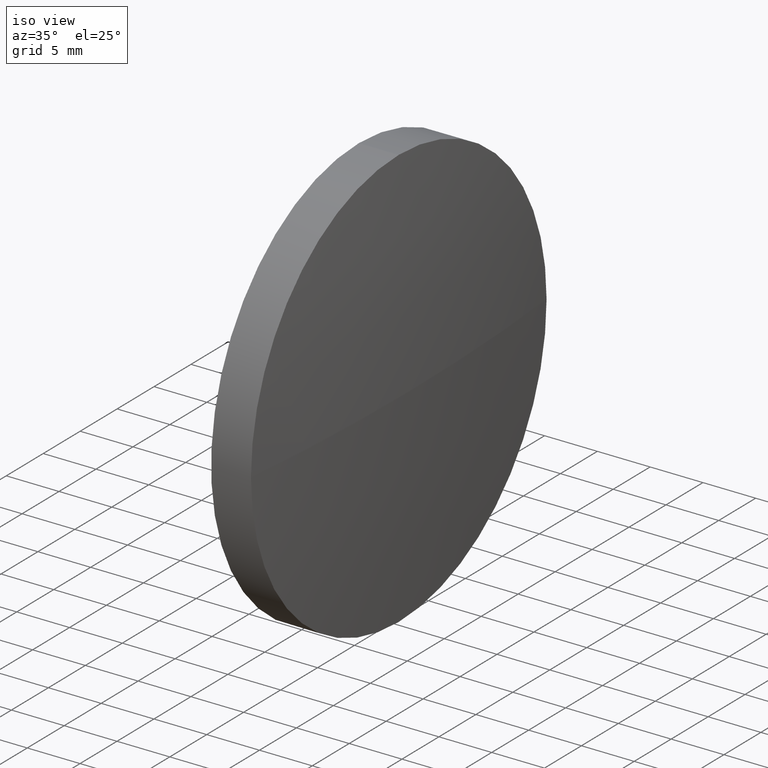
[diagram: clean part render]
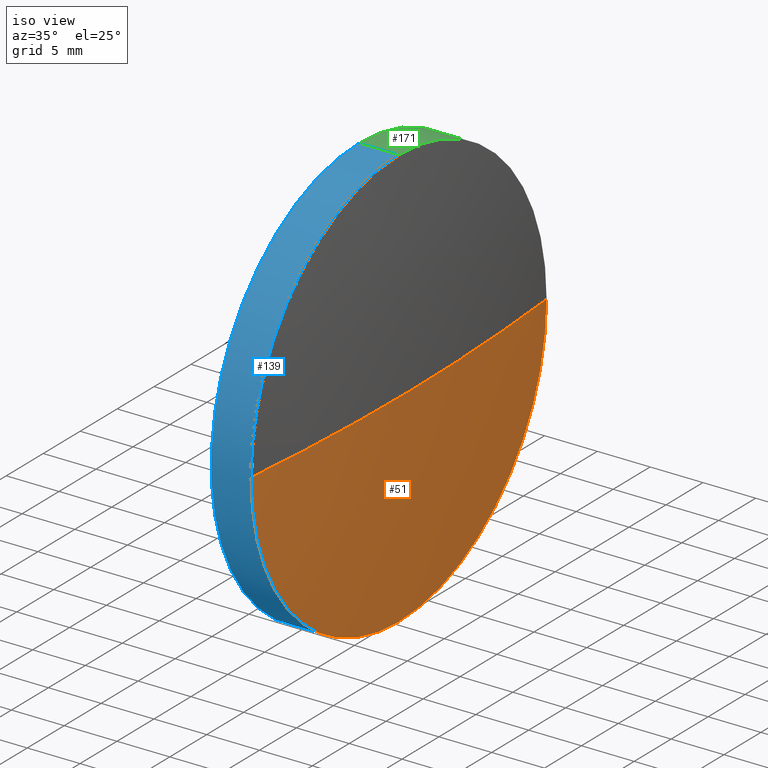
[diagram: same view with three faces highlighted in distinct colors, each labeled with its STEP entity id]
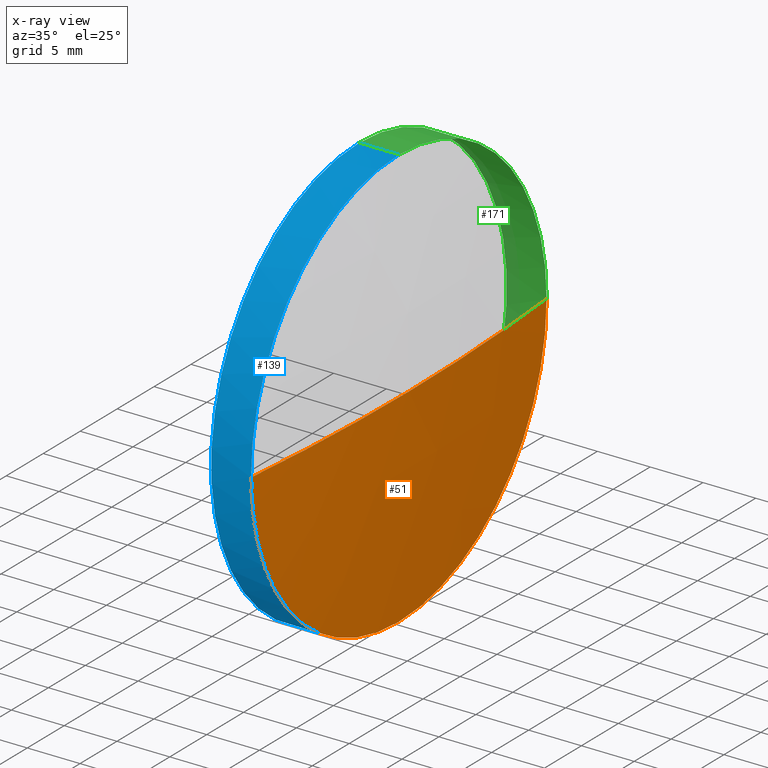
[diagram: x-ray of the same camera — body ghosted, the three highlighted faces saturated]
A machine part, iso view with three faces highlighted in distinct colors.
The next image is the same camera in x-ray (body ghosted, the three faces saturated) — at least one of them is partly hidden behind the body in this view.
Their STEP definitions:

[orange] entity #51 — the highlighted spherical surface has radius 205.616 mm.
#16 = ORIENTED_EDGE ( 'NONE', *, *, #31, .F. ) ;
#22 = CARTESIAN_POINT ( 'NONE',  ( 306.7557081062893800, 118.9984717383098300, 0.0000000000000000000 ) ) ;
#25 = CARTESIAN_POINT ( 'NONE',  ( 511.3964132344987100, 118.9984717383097600, -20.00000000000000400 ) ) ;
#28 = CIRCLE ( 'NONE', #132, 205.6157051282092700 ) ;
#31 = EDGE_CURVE ( 'NONE', #131, #55, #150, .T. ) ;
#36 = DIRECTION ( 'NONE',  ( 0.0000000000000000000, -1.000000000000000000, -1.224646799147353200E-016 ) ) ;
#39 = CARTESIAN_POINT ( 'NONE',  ( 511.3964132344987100, 118.9984717383097600, 0.0000000000000000000 ) ) ;
#44 = VERTEX_POINT ( 'NONE', #50 ) ;
#50 = CARTESIAN_POINT ( 'NONE',  ( 511.3964132344987100, 98.99847173830990200, 0.0000000000000000000 ) ) ;
#51 = ADVANCED_FACE ( 'NONE', ( #185 ), #183, .T. ) ;
#52 = DIRECTION ( 'NONE',  ( 0.0000000000000000000, -1.000000000000000000, 0.0000000000000000000 ) ) ;
#55 = VERTEX_POINT ( 'NONE', #166 ) ;
#56 = DIRECTION ( 'NONE',  ( -1.000000000000000000, 0.0000000000000000000, 0.0000000000000000000 ) ) ;
#60 = EDGE_CURVE ( 'NONE', #156, #44, #74, .T. ) ;
#74 = CIRCLE ( 'NONE', #135, 20.00000000000000400 ) ;
#79 = DIRECTION ( 'NONE',  ( 0.0000000000000000000, 0.0000000000000000000, -1.000000000000000000 ) ) ;
#83 = CARTESIAN_POINT ( 'NONE',  ( 511.3964132344987100, 118.9984717383097600, 0.0000000000000000000 ) ) ;
#85 = ORIENTED_EDGE ( 'NONE', *, *, #60, .F. ) ;
#88 = EDGE_LOOP ( 'NONE', ( #16, #164, #85, #115 ) ) ;
#91 = CARTESIAN_POINT ( 'NONE',  ( 306.7557081062893800, 118.9984717383098300, 0.0000000000000000000 ) ) ;
#107 = AXIS2_PLACEMENT_3D ( 'NONE', #22, #138, #52 ) ;
#108 = DIRECTION ( 'NONE',  ( 0.0000000000000000000, 0.0000000000000000000, 1.000000000000000000 ) ) ;
#110 = DIRECTION ( 'NONE',  ( -1.000000000000000000, -0.0000000000000000000, -0.0000000000000000000 ) ) ;
#115 = ORIENTED_EDGE ( 'NONE', *, *, #154, .F. ) ;
#121 = AXIS2_PLACEMENT_3D ( 'NONE', #91, #122, #36 ) ;
#122 = DIRECTION ( 'NONE',  ( 0.0000000000000000000, -1.224646799147353200E-016, 1.000000000000000000 ) ) ;
#123 = CARTESIAN_POINT ( 'NONE',  ( 306.7557081062893800, 118.9984717383098300, 0.0000000000000000000 ) ) ;
#124 = DIRECTION ( 'NONE',  ( 0.0000000000000000000, 0.0000000000000000000, 1.000000000000000000 ) ) ;
#126 = CARTESIAN_POINT ( 'NONE',  ( 512.3714132344986200, 118.9984717383098200, 0.0000000000000000000 ) ) ;
#130 = EDGE_CURVE ( 'NONE', #131, #44, #28, .T. ) ;
#131 = VERTEX_POINT ( 'NONE', #126 ) ;
#132 = AXIS2_PLACEMENT_3D ( 'NONE', #123, #79, #56 ) ;
#135 = AXIS2_PLACEMENT_3D ( 'NONE', #83, #110, #108 ) ;
#138 = DIRECTION ( 'NONE',  ( 0.0000000000000000000, 0.0000000000000000000, 1.000000000000000000 ) ) ;
#150 = CIRCLE ( 'NONE', #121, 205.6157051282092700 ) ;
#154 = EDGE_CURVE ( 'NONE', #55, #156, #180, .T. ) ;
#156 = VERTEX_POINT ( 'NONE', #25 ) ;
#164 = ORIENTED_EDGE ( 'NONE', *, *, #130, .T. ) ;
#166 = CARTESIAN_POINT ( 'NONE',  ( 511.3964132344987100, 138.9984717383096900, 2.449293598294687200E-015 ) ) ;
#170 = AXIS2_PLACEMENT_3D ( 'NONE', #39, #182, #124 ) ;
#180 = CIRCLE ( 'NONE', #170, 20.00000000000000400 ) ;
#182 = DIRECTION ( 'NONE',  ( -1.000000000000000000, -0.0000000000000000000, -0.0000000000000000000 ) ) ;
#183 = SPHERICAL_SURFACE ( 'NONE', #107, 205.6157051282092700 ) ;
#185 = FACE_OUTER_BOUND ( 'NONE', #88, .T. ) ;

[blue] entity #139 — the highlighted cylindrical surface (partial cylindrical patch) has radius 20 mm, axis along (-1, -0, -0).
#1 = VERTEX_POINT ( 'NONE', #63 ) ;
#3 = DIRECTION ( 'NONE',  ( 0.0000000000000000000, 0.0000000000000000000, 1.000000000000000000 ) ) ;
#8 = CARTESIAN_POINT ( 'NONE',  ( 511.3964132344987100, 118.9984717383097600, 0.0000000000000000000 ) ) ;
#9 = EDGE_LOOP ( 'NONE', ( #49, #174, #111, #24, #114 ) ) ;
#10 = DIRECTION ( 'NONE',  ( 0.0000000000000000000, 0.0000000000000000000, 1.000000000000000000 ) ) ;
#11 = DIRECTION ( 'NONE',  ( -1.000000000000000000, -0.0000000000000000000, -0.0000000000000000000 ) ) ;
#17 = EDGE_CURVE ( 'NONE', #32, #78, #76, .T. ) ;
#18 = CARTESIAN_POINT ( 'NONE',  ( 507.6214132344987300, 118.9984717383097600, 0.0000000000000000000 ) ) ;
#24 = ORIENTED_EDGE ( 'NONE', *, *, #134, .T. ) ;
#25 = CARTESIAN_POINT ( 'NONE',  ( 511.3964132344987100, 118.9984717383097600, -20.00000000000000400 ) ) ;
#32 = VERTEX_POINT ( 'NONE', #89 ) ;
#44 = VERTEX_POINT ( 'NONE', #50 ) ;
#49 = ORIENTED_EDGE ( 'NONE', *, *, #143, .F. ) ;
#50 = CARTESIAN_POINT ( 'NONE',  ( 511.3964132344987100, 98.99847173830990200, 0.0000000000000000000 ) ) ;
#54 = DIRECTION ( 'NONE',  ( 0.0000000000000000000, 0.0000000000000000000, 1.000000000000000000 ) ) ;
#60 = EDGE_CURVE ( 'NONE', #156, #44, #74, .T. ) ;
#62 = FACE_OUTER_BOUND ( 'NONE', #9, .T. ) ;
#63 = CARTESIAN_POINT ( 'NONE',  ( 511.3964132344987100, 118.9984717383097600, 20.00000000000000400 ) ) ;
#64 = AXIS2_PLACEMENT_3D ( 'NONE', #8, #82, #10 ) ;
#68 = CARTESIAN_POINT ( 'NONE',  ( 503.5014820520199200, 118.9984717383097600, 0.0000000000000000000 ) ) ;
#70 = DIRECTION ( 'NONE',  ( -1.000000000000000000, -0.0000000000000000000, -0.0000000000000000000 ) ) ;
#73 = AXIS2_PLACEMENT_3D ( 'NONE', #68, #11, #54 ) ;
#74 = CIRCLE ( 'NONE', #135, 20.00000000000000400 ) ;
#76 = CIRCLE ( 'NONE', #92, 20.00000000000000400 ) ;
#78 = VERTEX_POINT ( 'NONE', #168 ) ;
#82 = DIRECTION ( 'NONE',  ( -1.000000000000000000, -0.0000000000000000000, -0.0000000000000000000 ) ) ;
#83 = CARTESIAN_POINT ( 'NONE',  ( 511.3964132344987100, 118.9984717383097600, 0.0000000000000000000 ) ) ;
#89 = CARTESIAN_POINT ( 'NONE',  ( 507.6214132344987300, 118.9984717383097600, -20.00000000000000400 ) ) ;
#92 = AXIS2_PLACEMENT_3D ( 'NONE', #18, #155, #3 ) ;
#102 = VECTOR ( 'NONE', #70, 1000.000000000000000 ) ;
#108 = DIRECTION ( 'NONE',  ( 0.0000000000000000000, 0.0000000000000000000, 1.000000000000000000 ) ) ;
#110 = DIRECTION ( 'NONE',  ( -1.000000000000000000, -0.0000000000000000000, -0.0000000000000000000 ) ) ;
#111 = ORIENTED_EDGE ( 'NONE', *, *, #176, .T. ) ;
#114 = ORIENTED_EDGE ( 'NONE', *, *, #17, .F. ) ;
#128 = DIRECTION ( 'NONE',  ( -1.000000000000000000, -0.0000000000000000000, -0.0000000000000000000 ) ) ;
#134 = EDGE_CURVE ( 'NONE', #1, #78, #145, .T. ) ;
#135 = AXIS2_PLACEMENT_3D ( 'NONE', #83, #110, #108 ) ;
#137 = CYLINDRICAL_SURFACE ( 'NONE', #73, 20.00000000000000400 ) ;
#139 = ADVANCED_FACE ( 'NONE', ( #62 ), #137, .T. ) ;
#140 = CARTESIAN_POINT ( 'NONE',  ( 503.5014820520199200, 118.9984717383097600, -20.00000000000000400 ) ) ;
#143 = EDGE_CURVE ( 'NONE', #156, #32, #178, .T. ) ;
#144 = CARTESIAN_POINT ( 'NONE',  ( 503.5014820520199200, 118.9984717383097600, 20.00000000000000400 ) ) ;
#145 = LINE ( 'NONE', #144, #175 ) ;
#155 = DIRECTION ( 'NONE',  ( -1.000000000000000000, -0.0000000000000000000, -0.0000000000000000000 ) ) ;
#156 = VERTEX_POINT ( 'NONE', #25 ) ;
#167 = CIRCLE ( 'NONE', #64, 20.00000000000000400 ) ;
#168 = CARTESIAN_POINT ( 'NONE',  ( 507.6214132344987300, 118.9984717383097600, 20.00000000000000400 ) ) ;
#174 = ORIENTED_EDGE ( 'NONE', *, *, #60, .T. ) ;
#175 = VECTOR ( 'NONE', #128, 1000.000000000000000 ) ;
#176 = EDGE_CURVE ( 'NONE', #44, #1, #167, .T. ) ;
#178 = LINE ( 'NONE', #140, #102 ) ;

[green] entity #171 — the highlighted cylindrical surface (partial cylindrical patch) has radius 20 mm, axis along (-1, -0, -0).
#1 = VERTEX_POINT ( 'NONE', #63 ) ;
#4 = EDGE_CURVE ( 'NONE', #1, #55, #65, .T. ) ;
#21 = DIRECTION ( 'NONE',  ( -1.000000000000000000, -0.0000000000000000000, -0.0000000000000000000 ) ) ;
#25 = CARTESIAN_POINT ( 'NONE',  ( 511.3964132344987100, 118.9984717383097600, -20.00000000000000400 ) ) ;
#32 = VERTEX_POINT ( 'NONE', #89 ) ;
#34 = CARTESIAN_POINT ( 'NONE',  ( 511.3964132344987100, 118.9984717383097600, 0.0000000000000000000 ) ) ;
#35 = ORIENTED_EDGE ( 'NONE', *, *, #143, .T. ) ;
#39 = CARTESIAN_POINT ( 'NONE',  ( 511.3964132344987100, 118.9984717383097600, 0.0000000000000000000 ) ) ;
#42 = CARTESIAN_POINT ( 'NONE',  ( 507.6214132344987300, 118.9984717383097600, 0.0000000000000000000 ) ) ;
#55 = VERTEX_POINT ( 'NONE', #166 ) ;
#63 = CARTESIAN_POINT ( 'NONE',  ( 511.3964132344987100, 118.9984717383097600, 20.00000000000000400 ) ) ;
#65 = CIRCLE ( 'NONE', #87, 20.00000000000000400 ) ;
#67 = DIRECTION ( 'NONE',  ( 0.0000000000000000000, 0.0000000000000000000, 1.000000000000000000 ) ) ;
#70 = DIRECTION ( 'NONE',  ( -1.000000000000000000, -0.0000000000000000000, -0.0000000000000000000 ) ) ;
#78 = VERTEX_POINT ( 'NONE', #168 ) ;
#81 = CIRCLE ( 'NONE', #162, 20.00000000000000400 ) ;
#87 = AXIS2_PLACEMENT_3D ( 'NONE', #34, #21, #118 ) ;
#89 = CARTESIAN_POINT ( 'NONE',  ( 507.6214132344987300, 118.9984717383097600, -20.00000000000000400 ) ) ;
#96 = DIRECTION ( 'NONE',  ( -1.000000000000000000, -0.0000000000000000000, -0.0000000000000000000 ) ) ;
#100 = AXIS2_PLACEMENT_3D ( 'NONE', #172, #96, #67 ) ;
#101 = CYLINDRICAL_SURFACE ( 'NONE', #100, 20.00000000000000400 ) ;
#102 = VECTOR ( 'NONE', #70, 1000.000000000000000 ) ;
#106 = ORIENTED_EDGE ( 'NONE', *, *, #134, .F. ) ;
#117 = ORIENTED_EDGE ( 'NONE', *, *, #4, .T. ) ;
#118 = DIRECTION ( 'NONE',  ( 0.0000000000000000000, 0.0000000000000000000, 1.000000000000000000 ) ) ;
#124 = DIRECTION ( 'NONE',  ( 0.0000000000000000000, 0.0000000000000000000, 1.000000000000000000 ) ) ;
#125 = EDGE_LOOP ( 'NONE', ( #186, #35, #141, #106, #117 ) ) ;
#128 = DIRECTION ( 'NONE',  ( -1.000000000000000000, -0.0000000000000000000, -0.0000000000000000000 ) ) ;
#134 = EDGE_CURVE ( 'NONE', #1, #78, #145, .T. ) ;
#140 = CARTESIAN_POINT ( 'NONE',  ( 503.5014820520199200, 118.9984717383097600, -20.00000000000000400 ) ) ;
#141 = ORIENTED_EDGE ( 'NONE', *, *, #149, .F. ) ;
#143 = EDGE_CURVE ( 'NONE', #156, #32, #178, .T. ) ;
#144 = CARTESIAN_POINT ( 'NONE',  ( 503.5014820520199200, 118.9984717383097600, 20.00000000000000400 ) ) ;
#145 = LINE ( 'NONE', #144, #175 ) ;
#146 = DIRECTION ( 'NONE',  ( -1.000000000000000000, -0.0000000000000000000, -0.0000000000000000000 ) ) ;
#149 = EDGE_CURVE ( 'NONE', #78, #32, #81, .T. ) ;
#154 = EDGE_CURVE ( 'NONE', #55, #156, #180, .T. ) ;
#156 = VERTEX_POINT ( 'NONE', #25 ) ;
#158 = DIRECTION ( 'NONE',  ( 0.0000000000000000000, 0.0000000000000000000, 1.000000000000000000 ) ) ;
#162 = AXIS2_PLACEMENT_3D ( 'NONE', #42, #146, #158 ) ;
#166 = CARTESIAN_POINT ( 'NONE',  ( 511.3964132344987100, 138.9984717383096900, 2.449293598294687200E-015 ) ) ;
#168 = CARTESIAN_POINT ( 'NONE',  ( 507.6214132344987300, 118.9984717383097600, 20.00000000000000400 ) ) ;
#170 = AXIS2_PLACEMENT_3D ( 'NONE', #39, #182, #124 ) ;
#171 = ADVANCED_FACE ( 'NONE', ( #177 ), #101, .T. ) ;
#172 = CARTESIAN_POINT ( 'NONE',  ( 503.5014820520199200, 118.9984717383097600, 0.0000000000000000000 ) ) ;
#175 = VECTOR ( 'NONE', #128, 1000.000000000000000 ) ;
#177 = FACE_OUTER_BOUND ( 'NONE', #125, .T. ) ;
#178 = LINE ( 'NONE', #140, #102 ) ;
#180 = CIRCLE ( 'NONE', #170, 20.00000000000000400 ) ;
#182 = DIRECTION ( 'NONE',  ( -1.000000000000000000, -0.0000000000000000000, -0.0000000000000000000 ) ) ;
#186 = ORIENTED_EDGE ( 'NONE', *, *, #154, .T. ) ;